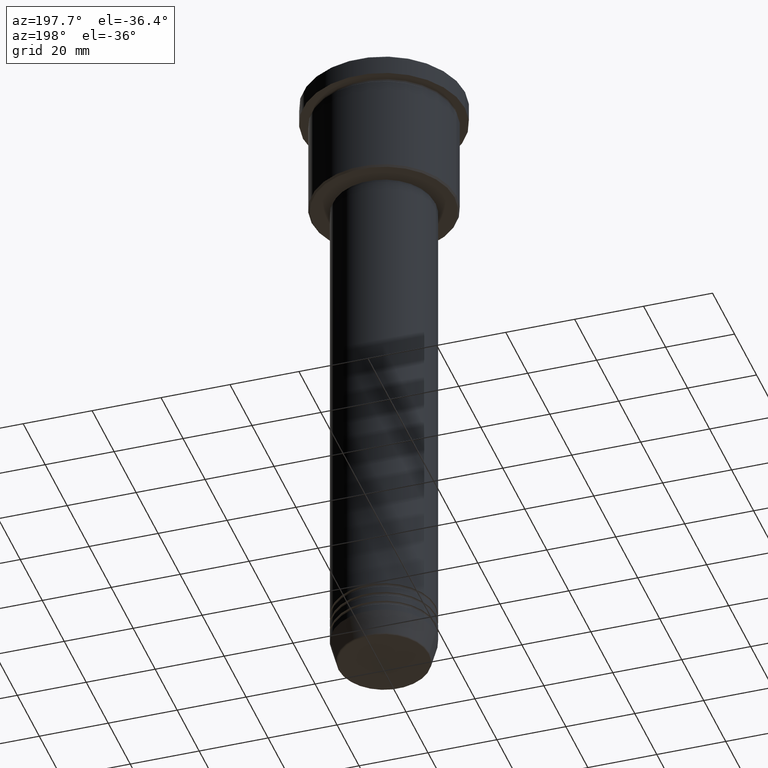
[diagram: clean part render]
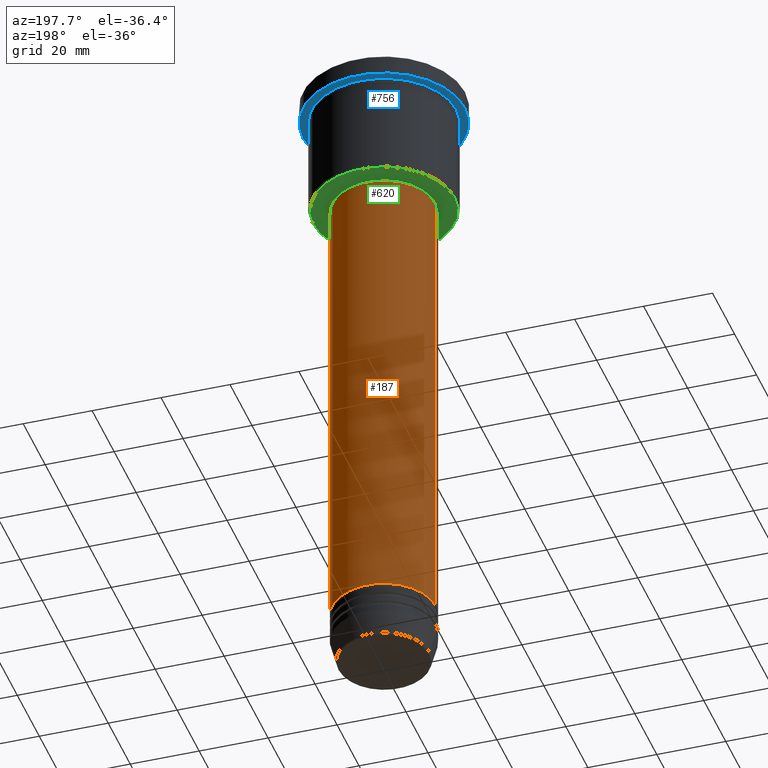
[diagram: same view with three faces highlighted in distinct colors, each labeled with its STEP entity id]
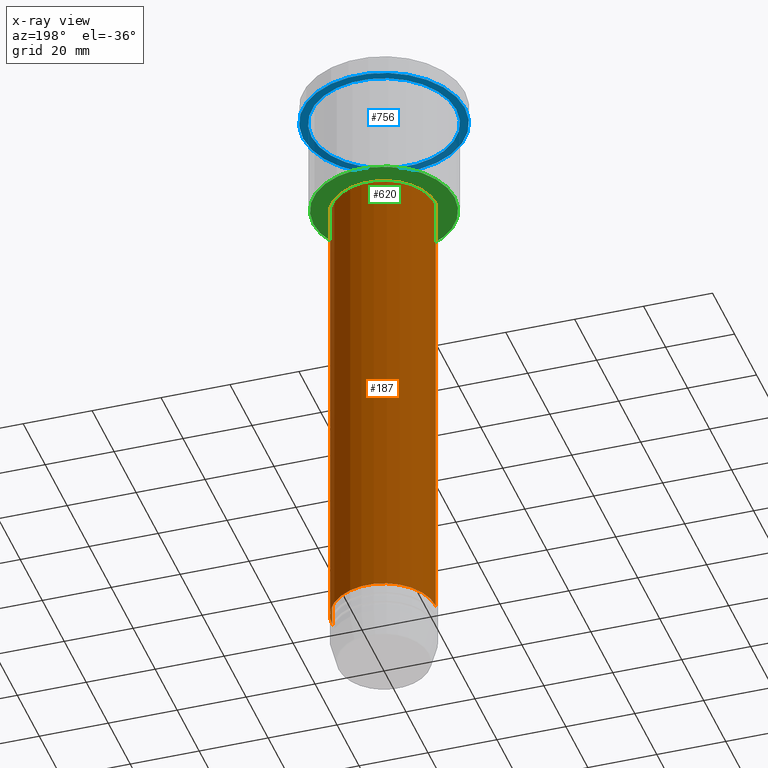
[diagram: x-ray of the same camera — body ghosted, the three highlighted faces saturated]
A machine part, auxiliary view with three faces highlighted in distinct colors.
The next image is the same camera in x-ray (body ghosted, the three faces saturated) — at least one of them is partly hidden behind the body in this view.
Their STEP definitions:

[orange] entity #187 — the highlighted cylindrical surface (partial cylindrical patch) has radius 15 mm, axis along (-0, -0, 1).
#12 = CYLINDRICAL_SURFACE ( 'NONE', #599, 15.00000000000000000 ) ;
#53 = CARTESIAN_POINT ( 'NONE',  ( -15.00000000000000000, 1.836970198721029589E-15, -175.0000000000000000 ) ) ;
#56 = DIRECTION ( 'NONE',  ( -0.000000000000000000, -0.000000000000000000, 1.000000000000000000 ) ) ;
#93 = DIRECTION ( 'NONE',  ( 1.000000000000000000, 0.000000000000000000, 0.000000000000000000 ) ) ;
#154 = CIRCLE ( 'NONE', #919, 15.00000000000000000 ) ;
#158 = VECTOR ( 'NONE', #907, 1000.000000000000000 ) ;
#162 = CARTESIAN_POINT ( 'NONE',  ( 15.00000000000000000, 0.000000000000000000, 0.000000000000000000 ) ) ;
#164 = EDGE_CURVE ( 'NONE', #499, #785, #154, .T. ) ;
#178 = FACE_OUTER_BOUND ( 'NONE', #312, .T. ) ;
#187 = ADVANCED_FACE ( 'NONE', ( #178 ), #12, .T. ) ;
#236 = ORIENTED_EDGE ( 'NONE', *, *, #164, .T. ) ;
#282 = CARTESIAN_POINT ( 'NONE',  ( 0.000000000000000000, 0.000000000000000000, 0.000000000000000000 ) ) ;
#287 = ORIENTED_EDGE ( 'NONE', *, *, #879, .F. ) ;
#289 = LINE ( 'NONE', #162, #158 ) ;
#312 = EDGE_LOOP ( 'NONE', ( #236, #686, #1118, #287 ) ) ;
#334 = CIRCLE ( 'NONE', #998, 15.00000000000000000 ) ;
#395 = CARTESIAN_POINT ( 'NONE',  ( 0.000000000000000000, 0.000000000000000000, -175.0000000000000000 ) ) ;
#430 = VERTEX_POINT ( 'NONE', #906 ) ;
#480 = CARTESIAN_POINT ( 'NONE',  ( 15.00000000000000000, 0.000000000000000000, -175.0000000000000000 ) ) ;
#499 = VERTEX_POINT ( 'NONE', #480 ) ;
#556 = DIRECTION ( 'NONE',  ( -0.000000000000000000, -0.000000000000000000, 1.000000000000000000 ) ) ;
#599 = AXIS2_PLACEMENT_3D ( 'NONE', #282, #556, #93 ) ;
#605 = VECTOR ( 'NONE', #1158, 1000.000000000000000 ) ;
#686 = ORIENTED_EDGE ( 'NONE', *, *, #688, .T. ) ;
#688 = EDGE_CURVE ( 'NONE', #785, #1153, #1162, .T. ) ;
#708 = EDGE_CURVE ( 'NONE', #430, #1153, #334, .T. ) ;
#717 = CARTESIAN_POINT ( 'NONE',  ( -15.00000000000000000, 1.836970198721029589E-15, 0.000000000000000000 ) ) ;
#751 = DIRECTION ( 'NONE',  ( 1.000000000000000000, 0.000000000000000000, 0.000000000000000000 ) ) ;
#785 = VERTEX_POINT ( 'NONE', #53 ) ;
#788 = CARTESIAN_POINT ( 'NONE',  ( -15.00000000000000000, 1.836970198721029589E-15, -37.00000000000001421 ) ) ;
#879 = EDGE_CURVE ( 'NONE', #499, #430, #289, .T. ) ;
#906 = CARTESIAN_POINT ( 'NONE',  ( 15.00000000000000000, 0.000000000000000000, -37.00000000000001421 ) ) ;
#907 = DIRECTION ( 'NONE',  ( -0.000000000000000000, -0.000000000000000000, 1.000000000000000000 ) ) ;
#919 = AXIS2_PLACEMENT_3D ( 'NONE', #395, #1094, #751 ) ;
#969 = DIRECTION ( 'NONE',  ( 1.000000000000000000, 0.000000000000000000, 0.000000000000000000 ) ) ;
#986 = CARTESIAN_POINT ( 'NONE',  ( 0.000000000000000000, 0.000000000000000000, -37.00000000000001421 ) ) ;
#998 = AXIS2_PLACEMENT_3D ( 'NONE', #986, #56, #969 ) ;
#1094 = DIRECTION ( 'NONE',  ( -0.000000000000000000, -0.000000000000000000, 1.000000000000000000 ) ) ;
#1118 = ORIENTED_EDGE ( 'NONE', *, *, #708, .F. ) ;
#1153 = VERTEX_POINT ( 'NONE', #788 ) ;
#1158 = DIRECTION ( 'NONE',  ( -0.000000000000000000, -0.000000000000000000, 1.000000000000000000 ) ) ;
#1162 = LINE ( 'NONE', #717, #605 ) ;

[blue] entity #756 — the highlighted planar face has unit normal (0, 0, -1).
#52 = ORIENTED_EDGE ( 'NONE', *, *, #464, .F. ) ;
#89 = DIRECTION ( 'NONE',  ( -1.000000000000000000, 0.000000000000000000, 0.000000000000000000 ) ) ;
#151 = DIRECTION ( 'NONE',  ( -1.000000000000000000, 0.000000000000000000, -0.000000000000000000 ) ) ;
#172 = CIRCLE ( 'NONE', #1149, 21.00000000000000000 ) ;
#183 = DIRECTION ( 'NONE',  ( -0.000000000000000000, -0.000000000000000000, 1.000000000000000000 ) ) ;
#201 = DIRECTION ( 'NONE',  ( -1.000000000000000000, 0.000000000000000000, 0.000000000000000000 ) ) ;
#206 = VERTEX_POINT ( 'NONE', #850 ) ;
#278 = CARTESIAN_POINT ( 'NONE',  ( 0.000000000000000000, 0.000000000000000000, -5.999999999999994671 ) ) ;
#306 = ORIENTED_EDGE ( 'NONE', *, *, #521, .T. ) ;
#307 = VERTEX_POINT ( 'NONE', #530 ) ;
#345 = PLANE ( 'NONE',  #376 ) ;
#376 = AXIS2_PLACEMENT_3D ( 'NONE', #523, #973, #151 ) ;
#432 = CIRCLE ( 'NONE', #939, 21.00000000000000000 ) ;
#444 = ORIENTED_EDGE ( 'NONE', *, *, #651, .F. ) ;
#454 = DIRECTION ( 'NONE',  ( -0.000000000000000000, -0.000000000000000000, 1.000000000000000000 ) ) ;
#464 = EDGE_CURVE ( 'NONE', #908, #307, #808, .T. ) ;
#521 = EDGE_CURVE ( 'NONE', #787, #206, #172, .T. ) ;
#523 = CARTESIAN_POINT ( 'NONE',  ( 0.000000000000000000, 23.50000000000000000, -5.999999999999994671 ) ) ;
#530 = CARTESIAN_POINT ( 'NONE',  ( 23.50000000000000000, 0.000000000000000000, -5.999999999999994671 ) ) ;
#533 = FACE_OUTER_BOUND ( 'NONE', #809, .T. ) ;
#535 = CARTESIAN_POINT ( 'NONE',  ( 0.000000000000000000, 0.000000000000000000, -5.999999999999994671 ) ) ;
#623 = DIRECTION ( 'NONE',  ( -0.000000000000000000, -0.000000000000000000, 1.000000000000000000 ) ) ;
#627 = AXIS2_PLACEMENT_3D ( 'NONE', #805, #623, #1055 ) ;
#633 = CARTESIAN_POINT ( 'NONE',  ( -23.50000000000000000, 2.877919977996280320E-15, -5.999999999999994671 ) ) ;
#651 = EDGE_CURVE ( 'NONE', #307, #908, #777, .T. ) ;
#660 = AXIS2_PLACEMENT_3D ( 'NONE', #535, #454, #1078 ) ;
#714 = ORIENTED_EDGE ( 'NONE', *, *, #940, .T. ) ;
#756 = ADVANCED_FACE ( 'NONE', ( #869, #533 ), #345, .T. ) ;
#764 = DIRECTION ( 'NONE',  ( -0.000000000000000000, -0.000000000000000000, 1.000000000000000000 ) ) ;
#777 = CIRCLE ( 'NONE', #627, 23.50000000000000000 ) ;
#787 = VERTEX_POINT ( 'NONE', #1048 ) ;
#801 = EDGE_LOOP ( 'NONE', ( #714, #306 ) ) ;
#805 = CARTESIAN_POINT ( 'NONE',  ( 0.000000000000000000, 0.000000000000000000, -5.999999999999994671 ) ) ;
#808 = CIRCLE ( 'NONE', #660, 23.50000000000000000 ) ;
#809 = EDGE_LOOP ( 'NONE', ( #444, #52 ) ) ;
#850 = CARTESIAN_POINT ( 'NONE',  ( -21.00000000000000000, 0.000000000000000000, -5.999999999999994671 ) ) ;
#869 = FACE_BOUND ( 'NONE', #801, .T. ) ;
#908 = VERTEX_POINT ( 'NONE', #633 ) ;
#939 = AXIS2_PLACEMENT_3D ( 'NONE', #278, #183, #89 ) ;
#940 = EDGE_CURVE ( 'NONE', #206, #787, #432, .T. ) ;
#973 = DIRECTION ( 'NONE',  ( 0.000000000000000000, 0.000000000000000000, -1.000000000000000000 ) ) ;
#1048 = CARTESIAN_POINT ( 'NONE',  ( 21.00000000000000000, 2.571758278209441661E-15, -5.999999999999994671 ) ) ;
#1055 = DIRECTION ( 'NONE',  ( 1.000000000000000000, 0.000000000000000000, 0.000000000000000000 ) ) ;
#1078 = DIRECTION ( 'NONE',  ( 1.000000000000000000, 0.000000000000000000, 0.000000000000000000 ) ) ;
#1137 = CARTESIAN_POINT ( 'NONE',  ( 0.000000000000000000, 0.000000000000000000, -5.999999999999994671 ) ) ;
#1149 = AXIS2_PLACEMENT_3D ( 'NONE', #1137, #764, #201 ) ;

[green] entity #620 — the highlighted planar face has unit normal (0, 0, -1).
#25 = AXIS2_PLACEMENT_3D ( 'NONE', #495, #308, #673 ) ;
#62 = EDGE_CURVE ( 'NONE', #246, #814, #977, .T. ) ;
#106 = CARTESIAN_POINT ( 'NONE',  ( 0.000000000000000000, 0.000000000000000000, -36.00000000000000711 ) ) ;
#128 = EDGE_CURVE ( 'NONE', #555, #606, #503, .T. ) ;
#131 = CARTESIAN_POINT ( 'NONE',  ( 0.000000000000000000, 0.000000000000000000, -36.00000000000000711 ) ) ;
#135 = CARTESIAN_POINT ( 'NONE',  ( 14.49999999999999822, 0.000000000000000000, -36.00000000000000711 ) ) ;
#207 = CARTESIAN_POINT ( 'NONE',  ( -14.49999999999999822, 1.775737858763662015E-15, -36.00000000000000711 ) ) ;
#212 = EDGE_LOOP ( 'NONE', ( #542, #453 ) ) ;
#214 = PLANE ( 'NONE',  #25 ) ;
#246 = VERTEX_POINT ( 'NONE', #466 ) ;
#281 = EDGE_LOOP ( 'NONE', ( #494, #588 ) ) ;
#290 = DIRECTION ( 'NONE',  ( -1.000000000000000000, 0.000000000000000000, 0.000000000000000000 ) ) ;
#308 = DIRECTION ( 'NONE',  ( 0.000000000000000000, 0.000000000000000000, -1.000000000000000000 ) ) ;
#335 = CIRCLE ( 'NONE', #1172, 14.49999999999999822 ) ;
#355 = CIRCLE ( 'NONE', #1014, 20.49999999999998934 ) ;
#365 = DIRECTION ( 'NONE',  ( 0.000000000000000000, 0.000000000000000000, -1.000000000000000000 ) ) ;
#381 = CARTESIAN_POINT ( 'NONE',  ( 20.49999999999998934, 0.000000000000000000, -36.00000000000000711 ) ) ;
#401 = FACE_OUTER_BOUND ( 'NONE', #281, .T. ) ;
#429 = AXIS2_PLACEMENT_3D ( 'NONE', #822, #475, #632 ) ;
#453 = ORIENTED_EDGE ( 'NONE', *, *, #1095, .T. ) ;
#466 = CARTESIAN_POINT ( 'NONE',  ( -20.49999999999998934, 2.541142108230757480E-15, -36.00000000000000711 ) ) ;
#475 = DIRECTION ( 'NONE',  ( -0.000000000000000000, -0.000000000000000000, 1.000000000000000000 ) ) ;
#479 = DIRECTION ( 'NONE',  ( -0.000000000000000000, -0.000000000000000000, 1.000000000000000000 ) ) ;
#494 = ORIENTED_EDGE ( 'NONE', *, *, #843, .T. ) ;
#495 = CARTESIAN_POINT ( 'NONE',  ( 0.000000000000000000, 21.00000000000000000, -36.00000000000000711 ) ) ;
#503 = CIRCLE ( 'NONE', #429, 14.49999999999999822 ) ;
#524 = DIRECTION ( 'NONE',  ( 0.000000000000000000, 0.000000000000000000, -1.000000000000000000 ) ) ;
#542 = ORIENTED_EDGE ( 'NONE', *, *, #128, .T. ) ;
#548 = CARTESIAN_POINT ( 'NONE',  ( 0.000000000000000000, 0.000000000000000000, -36.00000000000000711 ) ) ;
#555 = VERTEX_POINT ( 'NONE', #135 ) ;
#588 = ORIENTED_EDGE ( 'NONE', *, *, #62, .T. ) ;
#606 = VERTEX_POINT ( 'NONE', #207 ) ;
#620 = ADVANCED_FACE ( 'NONE', ( #401, #1110 ), #214, .T. ) ;
#632 = DIRECTION ( 'NONE',  ( 1.000000000000000000, 0.000000000000000000, 0.000000000000000000 ) ) ;
#673 = DIRECTION ( 'NONE',  ( -1.000000000000000000, 0.000000000000000000, -0.000000000000000000 ) ) ;
#696 = AXIS2_PLACEMENT_3D ( 'NONE', #131, #524, #290 ) ;
#741 = DIRECTION ( 'NONE',  ( -1.000000000000000000, 0.000000000000000000, 0.000000000000000000 ) ) ;
#814 = VERTEX_POINT ( 'NONE', #381 ) ;
#822 = CARTESIAN_POINT ( 'NONE',  ( 0.000000000000000000, 0.000000000000000000, -36.00000000000000711 ) ) ;
#838 = DIRECTION ( 'NONE',  ( 1.000000000000000000, 0.000000000000000000, 0.000000000000000000 ) ) ;
#843 = EDGE_CURVE ( 'NONE', #814, #246, #355, .T. ) ;
#977 = CIRCLE ( 'NONE', #696, 20.49999999999998934 ) ;
#1014 = AXIS2_PLACEMENT_3D ( 'NONE', #548, #365, #741 ) ;
#1095 = EDGE_CURVE ( 'NONE', #606, #555, #335, .T. ) ;
#1110 = FACE_BOUND ( 'NONE', #212, .T. ) ;
#1172 = AXIS2_PLACEMENT_3D ( 'NONE', #106, #479, #838 ) ;